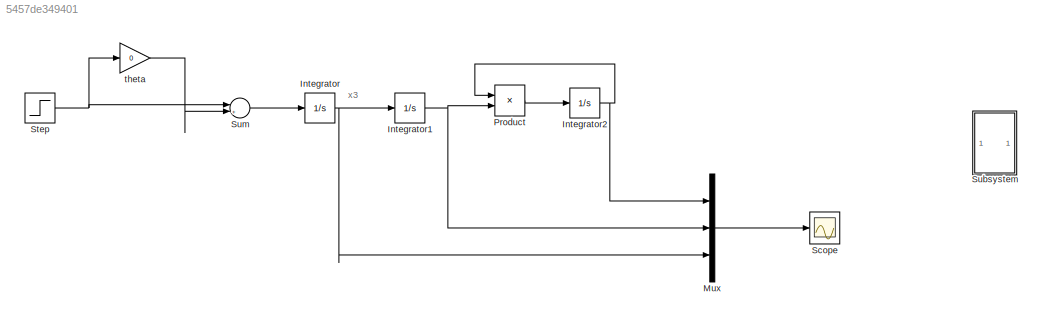
MODEL slx_5457de349401
KIND model
CONFIG AbsTol = auto
CONFIG EnableMultiTasking = off
CONFIG FixedStep = auto
CONFIG MaxStep = auto
CONFIG MinStep = auto
CONFIG RelTol = 1e-3
CONFIG SampleTimeConstraint = Unconstrained
CONFIG Solver = VariableStepAuto
CONFIG SolverName = VariableStepAuto
CONFIG StartTime = 0.0
CONFIG StopTime = 10.0
BLOCK [Integrator] Integrator
  Ports = [1, 1]
BLOCK [Integrator] Integrator1
  InitialCondition = 1
  Ports = [1, 1]
BLOCK [Integrator] Integrator2
  Ports = [1, 1]
BLOCK [Mux] Mux
  DisplayOption = bar
  Inputs = 3
  Ports = [3, 1]
BLOCK [Product] Product
  InputSameDT = off
  OutDataTypeStr = Inherit: Inherit via internal rule
  Ports = [2, 1]
  RndMeth = Floor
  SaturateOnIntegerOverflow = off
BLOCK [Scope] Scope
  NumInputPorts = 1
  Ports = [1]
  ScopeSpecificationString = Simulink.scopes.TimeScopeBlockCfg('CurrentConfiguration', extmgr.ConfigurationSet(extmgr.Configuration('Core','General UI',true),extmgr.Configuration('Core','Source UI',true),extmgr.Configuration('Sources','WiredSimulink',true),extmgr.Configuration('Visuals','Time Domain',true,'SerializedDisplays',{struct('MinYLimReal','-5.1875','MaxYLimReal','46.6875','YLabelReal','','MinYLimMag','0.00000','MaxYL...<+1356ch>
BLOCK [Step] Step
  SampleTime = 0
  Time = 0
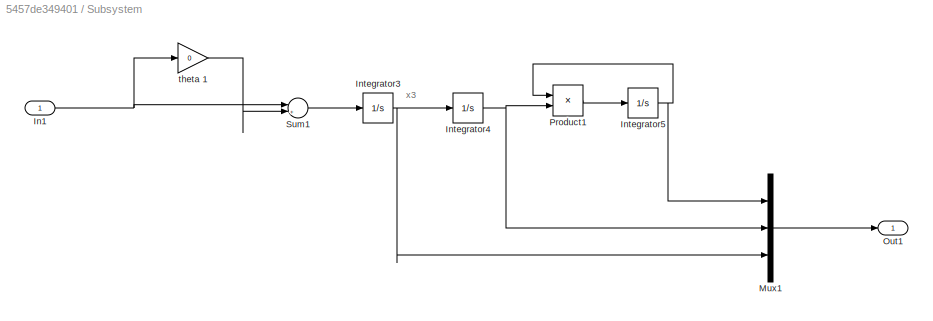
BLOCK [SubSystem] Subsystem
  Commented = on
  Ports = [1, 1]
  RequestExecContextInheritance = off
  Variant = off
BLOCK [Inport] Subsystem/In1
  IconDisplay = Port number
BLOCK [Integrator] Subsystem/Integrator3
  Ports = [1, 1]
BLOCK [Integrator] Subsystem/Integrator4
  Ports = [1, 1]
BLOCK [Integrator] Subsystem/Integrator5
  Ports = [1, 1]
BLOCK [Mux] Subsystem/Mux1
  DisplayOption = bar
  Inputs = 3
  Ports = [3, 1]
BLOCK [Outport] Subsystem/Out1
  IconDisplay = Port number
BLOCK [Product] Subsystem/Product1
  InputSameDT = off
  OutDataTypeStr = Inherit: Inherit via internal rule
  Ports = [2, 1]
  RndMeth = Floor
  SaturateOnIntegerOverflow = off
BLOCK [Sum] Subsystem/Sum1
  IconShape = round
  InputSameDT = off
  Inputs = |++
  OutDataTypeStr = Inherit: Inherit via internal rule
  Ports = [2, 1]
  SaturateOnIntegerOverflow = off
BLOCK [Gain] Subsystem/theta 1
  Gain = 0
  OutDataTypeStr = Inherit: Inherit via internal rule
  ParamDataTypeStr = Inherit: Inherit via internal rule
  SaturateOnIntegerOverflow = off
BLOCK [Sum] Sum
  IconShape = round
  InputSameDT = off
  Inputs = |++
  OutDataTypeStr = Inherit: Inherit via internal rule
  Ports = [2, 1]
  SaturateOnIntegerOverflow = off
BLOCK [Gain] theta 
  Gain = 0
  OutDataTypeStr = Inherit: Inherit via internal rule
  ParamDataTypeStr = Inherit: Inherit via internal rule
  SaturateOnIntegerOverflow = off
ANNOTATION (root): x3
ANNOTATION Subsystem: x3
NET Integrator1:1 -> Mux:2, Product:2
NET Integrator2:1 -> Mux:1, Product:1
NET Integrator:1 -> Integrator1:1, Mux:3
LINE Mux:1 -> Scope:1
LINE Product:1 -> Integrator2:1
NET Step:1 -> Sum:1, theta :1
NET Subsystem/In1:1 -> Subsystem/Sum1:1, Subsystem/theta 1:1
NET Subsystem/Integrator3:1 -> Subsystem/Integrator4:1, Subsystem/Mux1:3
NET Subsystem/Integrator4:1 -> Subsystem/Mux1:2, Subsystem/Product1:2
NET Subsystem/Integrator5:1 -> Subsystem/Mux1:1, Subsystem/Product1:1
LINE Subsystem/Mux1:1 -> Subsystem/Out1:1
LINE Subsystem/Product1:1 -> Subsystem/Integrator5:1
LINE Subsystem/Sum1:1 -> Subsystem/Integrator3:1
LINE Subsystem/theta 1:1 -> Subsystem/Sum1:2
LINE Sum:1 -> Integrator:1
LINE theta :1 -> Sum:2
note: NET lines group one-source signal fan-out (src -> all destinations, sorted); 1:1 wires keep LINE
